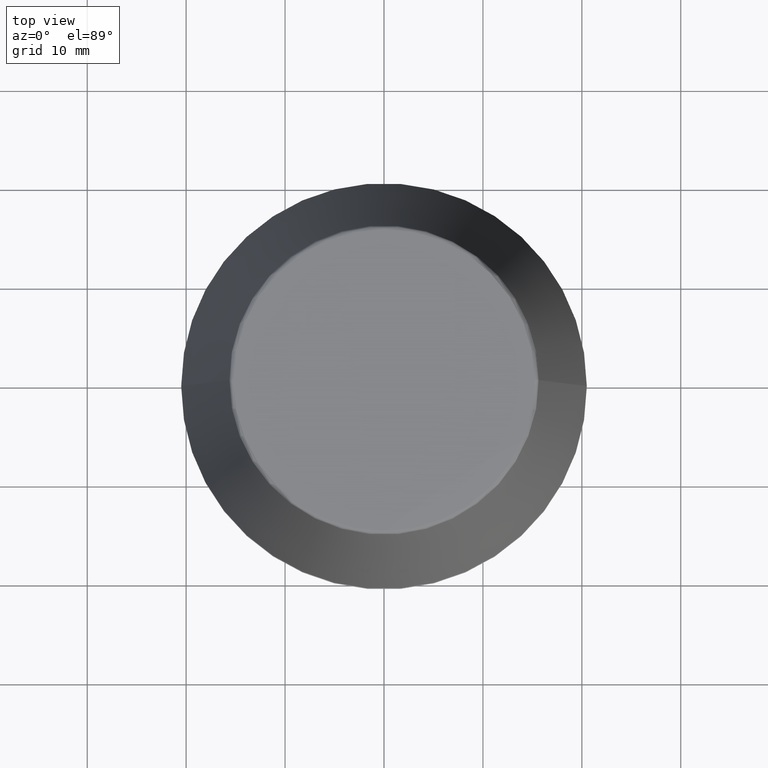
[diagram: clean part render]
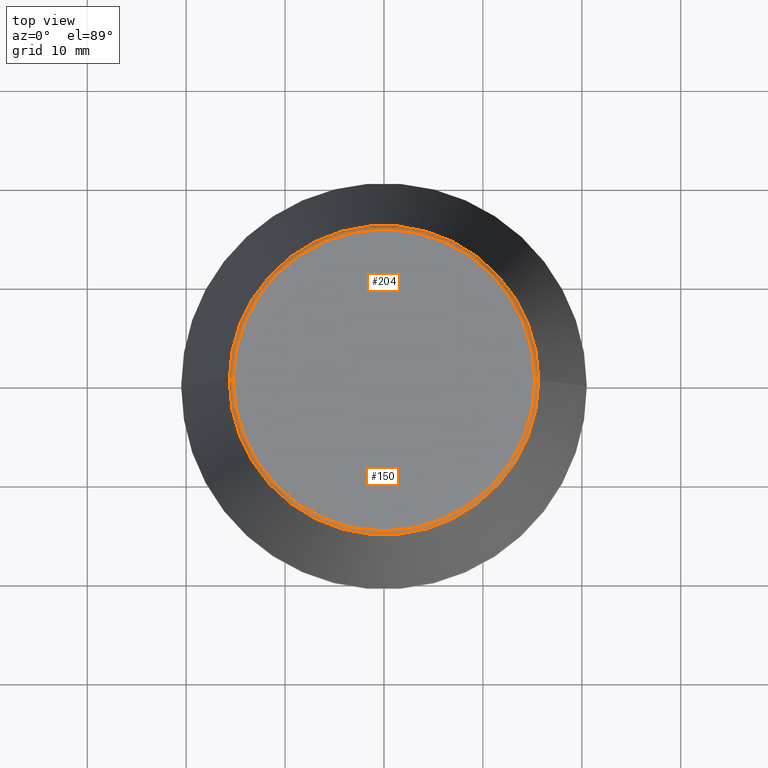
[diagram: same view with one multi-face feature highlighted, each face labeled with its STEP entity id]
A machine part, top view. The highlighted faces form ONE feature: a constant-radius fillet chain: 2 tangent blend faces with common blend radius 0.4 mm. The faces share edges in the B-rep.
Their STEP definitions:
[1] entity #150 (Torus):
#7 = AXIS2_PLACEMENT_3D ( 'NONE', #254, #65, #217 ) ;
#22 = CARTESIAN_POINT ( 'NONE',  ( 15.64384277279740400, 2.213191991290356800E-015, 45.65566924038402900 ) ) ;
#37 = ORIENTED_EDGE ( 'NONE', *, *, #133, .F. ) ;
#60 = VERTEX_POINT ( 'NONE', #128 ) ;
#61 = ORIENTED_EDGE ( 'NONE', *, *, #260, .F. ) ;
#65 = DIRECTION ( 'NONE',  ( 0.0000000000000000000, -1.000000000000000000, 0.0000000000000000000 ) ) ;
#72 = DIRECTION ( 'NONE',  ( -1.000000000000000000, 1.224646799147353900E-016, 0.0000000000000000000 ) ) ;
#76 = CARTESIAN_POINT ( 'NONE',  ( 0.0000000000000000000, 0.0000000000000000000, 45.60000000000000100 ) ) ;
#89 = DIRECTION ( 'NONE',  ( 1.000000000000000000, 0.0000000000000000000, 0.0000000000000000000 ) ) ;
#118 = EDGE_CURVE ( 'NONE', #60, #131, #193, .T. ) ;
#121 = ORIENTED_EDGE ( 'NONE', *, *, #307, .T. ) ;
#127 = DIRECTION ( 'NONE',  ( -0.0000000000000000000, -0.0000000000000000000, 1.000000000000000000 ) ) ;
#128 = CARTESIAN_POINT ( 'NONE',  ( -15.64384277279740400, 0.0000000000000000000, 45.65566924038402900 ) ) ;
#131 = VERTEX_POINT ( 'NONE', #22 ) ;
#133 = EDGE_CURVE ( 'NONE', #60, #358, #360, .T. ) ;
#138 = CARTESIAN_POINT ( 'NONE',  ( 0.0000000000000000000, 0.0000000000000000000, 45.65566924038402900 ) ) ;
#144 = DIRECTION ( 'NONE',  ( 1.000000000000000000, 0.0000000000000000000, 0.0000000000000000000 ) ) ;
#150 = ADVANCED_FACE ( 'NONE', ( #345 ), #339, .T. ) ;
#166 = DIRECTION ( 'NONE',  ( 1.224646799147353200E-016, 1.000000000000000000, 0.0000000000000000000 ) ) ;
#170 = CARTESIAN_POINT ( 'NONE',  ( 0.0000000000000000000, 0.0000000000000000000, 46.00000000000000000 ) ) ;
#179 = ORIENTED_EDGE ( 'NONE', *, *, #118, .T. ) ;
#181 = AXIS2_PLACEMENT_3D ( 'NONE', #170, #371, #144 ) ;
#184 = EDGE_LOOP ( 'NONE', ( #37, #179, #121, #61 ) ) ;
#190 = CARTESIAN_POINT ( 'NONE',  ( 15.24773554530077600, 0.0000000000000000000, 46.00000000000000000 ) ) ;
#193 = CIRCLE ( 'NONE', #353, 15.64384277279740400 ) ;
#203 = DIRECTION ( 'NONE',  ( 1.000000000000000000, 0.0000000000000000000, 0.0000000000000000000 ) ) ;
#217 = DIRECTION ( 'NONE',  ( 0.0000000000000000000, 0.0000000000000000000, -1.000000000000000000 ) ) ;
#254 = CARTESIAN_POINT ( 'NONE',  ( 15.24773554530077600, 0.0000000000000000000, 45.60000000000000100 ) ) ;
#260 = EDGE_CURVE ( 'NONE', #358, #370, #309, .T. ) ;
#265 = DIRECTION ( 'NONE',  ( -0.0000000000000000000, -0.0000000000000000000, 1.000000000000000000 ) ) ;
#274 = CIRCLE ( 'NONE', #7, 0.3999999999999975800 ) ;
#284 = CARTESIAN_POINT ( 'NONE',  ( -15.24773554530077600, 1.891563625393435400E-015, 46.00000000000000000 ) ) ;
#307 = EDGE_CURVE ( 'NONE', #131, #370, #274, .T. ) ;
#309 = CIRCLE ( 'NONE', #181, 15.24773554530077600 ) ;
#339 = TOROIDAL_SURFACE ( 'NONE', #384, 15.24773554530077600, 0.3999999999999991900 ) ;
#343 = CARTESIAN_POINT ( 'NONE',  ( -15.24773554530077600, 1.867309052979791600E-015, 45.60000000000000100 ) ) ;
#345 = FACE_OUTER_BOUND ( 'NONE', #184, .T. ) ;
#353 = AXIS2_PLACEMENT_3D ( 'NONE', #138, #265, #203 ) ;
#358 = VERTEX_POINT ( 'NONE', #284 ) ;
#360 = CIRCLE ( 'NONE', #362, 0.3999999999999975800 ) ;
#362 = AXIS2_PLACEMENT_3D ( 'NONE', #343, #166, #72 ) ;
#370 = VERTEX_POINT ( 'NONE', #190 ) ;
#371 = DIRECTION ( 'NONE',  ( -0.0000000000000000000, -0.0000000000000000000, 1.000000000000000000 ) ) ;
#384 = AXIS2_PLACEMENT_3D ( 'NONE', #76, #127, #89 ) ;
[2] entity #204 (Torus):
#7 = AXIS2_PLACEMENT_3D ( 'NONE', #254, #65, #217 ) ;
#22 = CARTESIAN_POINT ( 'NONE',  ( 15.64384277279740400, 2.213191991290356800E-015, 45.65566924038402900 ) ) ;
#29 = AXIS2_PLACEMENT_3D ( 'NONE', #108, #338, #328 ) ;
#42 = DIRECTION ( 'NONE',  ( -0.0000000000000000000, -0.0000000000000000000, 1.000000000000000000 ) ) ;
#43 = DIRECTION ( 'NONE',  ( -0.0000000000000000000, -0.0000000000000000000, 1.000000000000000000 ) ) ;
#49 = CARTESIAN_POINT ( 'NONE',  ( 0.0000000000000000000, 0.0000000000000000000, 45.60000000000000100 ) ) ;
#60 = VERTEX_POINT ( 'NONE', #128 ) ;
#65 = DIRECTION ( 'NONE',  ( 0.0000000000000000000, -1.000000000000000000, 0.0000000000000000000 ) ) ;
#69 = CARTESIAN_POINT ( 'NONE',  ( 0.0000000000000000000, 0.0000000000000000000, 45.65566924038402900 ) ) ;
#72 = DIRECTION ( 'NONE',  ( -1.000000000000000000, 1.224646799147353900E-016, 0.0000000000000000000 ) ) ;
#75 = EDGE_CURVE ( 'NONE', #370, #358, #372, .T. ) ;
#92 = ORIENTED_EDGE ( 'NONE', *, *, #75, .F. ) ;
#104 = ORIENTED_EDGE ( 'NONE', *, *, #248, .T. ) ;
#108 = CARTESIAN_POINT ( 'NONE',  ( 0.0000000000000000000, 0.0000000000000000000, 46.00000000000000000 ) ) ;
#128 = CARTESIAN_POINT ( 'NONE',  ( -15.64384277279740400, 0.0000000000000000000, 45.65566924038402900 ) ) ;
#131 = VERTEX_POINT ( 'NONE', #22 ) ;
#133 = EDGE_CURVE ( 'NONE', #60, #358, #360, .T. ) ;
#143 = AXIS2_PLACEMENT_3D ( 'NONE', #69, #43, #200 ) ;
#166 = DIRECTION ( 'NONE',  ( 1.224646799147353200E-016, 1.000000000000000000, 0.0000000000000000000 ) ) ;
#176 = DIRECTION ( 'NONE',  ( 1.000000000000000000, 0.0000000000000000000, 0.0000000000000000000 ) ) ;
#190 = CARTESIAN_POINT ( 'NONE',  ( 15.24773554530077600, 0.0000000000000000000, 46.00000000000000000 ) ) ;
#192 = EDGE_LOOP ( 'NONE', ( #104, #264, #92, #356 ) ) ;
#200 = DIRECTION ( 'NONE',  ( 1.000000000000000000, 0.0000000000000000000, 0.0000000000000000000 ) ) ;
#204 = ADVANCED_FACE ( 'NONE', ( #323 ), #317, .T. ) ;
#217 = DIRECTION ( 'NONE',  ( 0.0000000000000000000, 0.0000000000000000000, -1.000000000000000000 ) ) ;
#248 = EDGE_CURVE ( 'NONE', #131, #60, #297, .T. ) ;
#254 = CARTESIAN_POINT ( 'NONE',  ( 15.24773554530077600, 0.0000000000000000000, 45.60000000000000100 ) ) ;
#259 = AXIS2_PLACEMENT_3D ( 'NONE', #49, #42, #176 ) ;
#264 = ORIENTED_EDGE ( 'NONE', *, *, #133, .T. ) ;
#274 = CIRCLE ( 'NONE', #7, 0.3999999999999975800 ) ;
#284 = CARTESIAN_POINT ( 'NONE',  ( -15.24773554530077600, 1.891563625393435400E-015, 46.00000000000000000 ) ) ;
#297 = CIRCLE ( 'NONE', #143, 15.64384277279740400 ) ;
#307 = EDGE_CURVE ( 'NONE', #131, #370, #274, .T. ) ;
#317 = TOROIDAL_SURFACE ( 'NONE', #259, 15.24773554530077600, 0.3999999999999991900 ) ;
#323 = FACE_OUTER_BOUND ( 'NONE', #192, .T. ) ;
#328 = DIRECTION ( 'NONE',  ( 1.000000000000000000, 0.0000000000000000000, 0.0000000000000000000 ) ) ;
#338 = DIRECTION ( 'NONE',  ( -0.0000000000000000000, -0.0000000000000000000, 1.000000000000000000 ) ) ;
#343 = CARTESIAN_POINT ( 'NONE',  ( -15.24773554530077600, 1.867309052979791600E-015, 45.60000000000000100 ) ) ;
#356 = ORIENTED_EDGE ( 'NONE', *, *, #307, .F. ) ;
#358 = VERTEX_POINT ( 'NONE', #284 ) ;
#360 = CIRCLE ( 'NONE', #362, 0.3999999999999975800 ) ;
#362 = AXIS2_PLACEMENT_3D ( 'NONE', #343, #166, #72 ) ;
#370 = VERTEX_POINT ( 'NONE', #190 ) ;
#372 = CIRCLE ( 'NONE', #29, 15.24773554530077600 ) ;